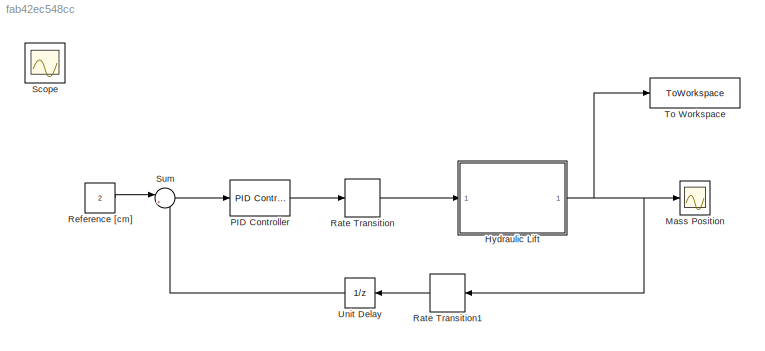
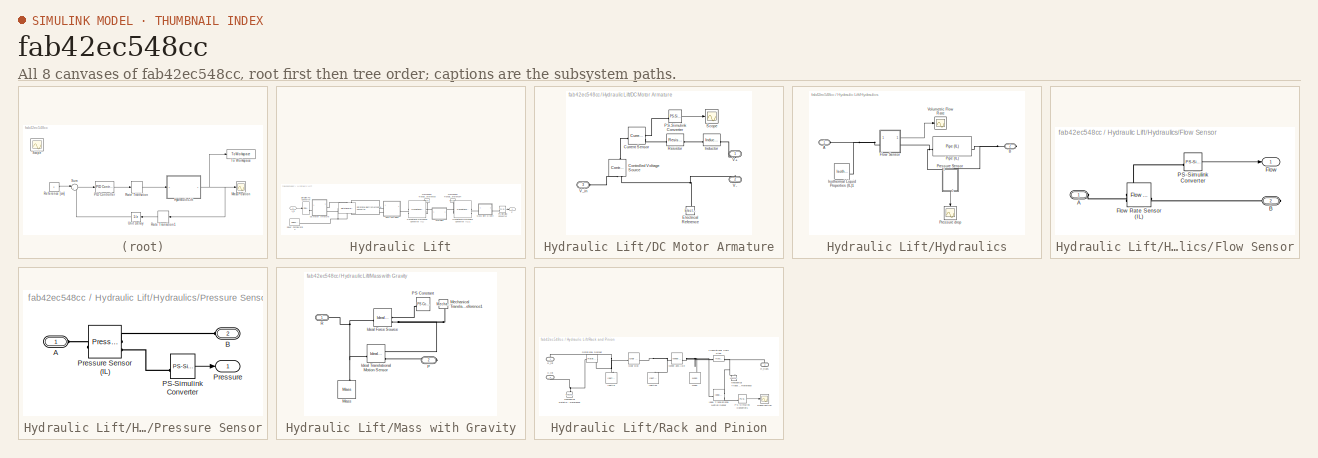
[diagram: thumbnail index - all 8 canvases of the model, root first then tree order]
MODEL slx_fab42ec548cc
KIND model
CONFIG AbsTol = 1e-3
CONFIG EnableMultiTasking = on
CONFIG FixedStep = auto
CONFIG MaxStep = auto
CONFIG MinStep = auto
CONFIG PreLoadFcn = m = 50;\ng = 9.81;
CONFIG RelTol = 1e-3
CONFIG SampleTimeConstraint = Unconstrained
CONFIG SolverName = ode23t
CONFIG StartTime = 0.0
CONFIG StopTime = 30
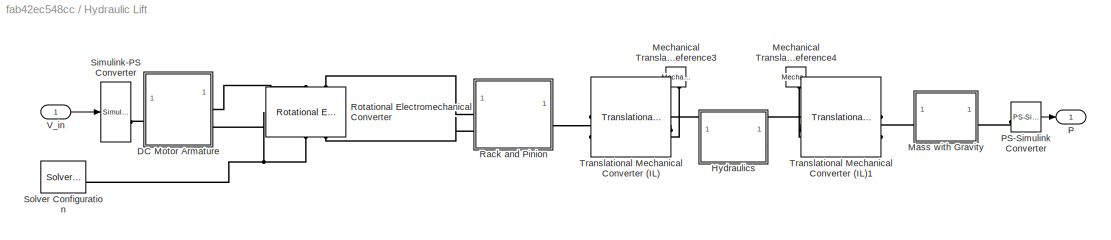
BLOCK [SubSystem] Hydraulic Lift
BLOCK [SubSystem] Hydraulic Lift/DC Motor Armature
BLOCK [Reference] Hydraulic Lift/DC Motor Armature/Controlled Voltage Source  REF=fl_lib/Electrical/Electrical Sources/Controlled Voltage
Source
  NameLocation = right
  SourceBlock = fl_lib/Electrical/Electrical Sources/Controlled Voltage\nSource
  SourceType = Controlled Voltage\nSource
BLOCK [Reference] Hydraulic Lift/DC Motor Armature/Current Sensor  REF=fl_lib/Electrical/Electrical Sensors/Current Sensor
  SourceBlock = fl_lib/Electrical/Electrical Sensors/Current Sensor
  SourceType = Current Sensor
BLOCK [Reference] Hydraulic Lift/DC Motor Armature/Electrical Reference  REF=fl_lib/Electrical/Electrical Elements/Electrical Reference
  NameLocation = right
  SourceBlock = fl_lib/Electrical/Electrical Elements/Electrical Reference
  SourceType = Electrical Reference
BLOCK [Reference] Hydraulic Lift/DC Motor Armature/Inductor  REF=fl_lib/Electrical/Electrical Elements/Inductor
  SourceBlock = fl_lib/Electrical/Electrical Elements/Inductor
  SourceType = Inductor
BLOCK [Reference] Hydraulic Lift/DC Motor Armature/PS-Simulink Converter  REF=nesl_utility/PS-Simulink
Converter
  SourceBlock = nesl_utility/PS-Simulink\nConverter
  SourceType = PS-Simulink\nConverter
BLOCK [Reference] Hydraulic Lift/DC Motor Armature/Resistor  REF=fl_lib/Electrical/Electrical Elements/Resistor
  SourceBlock = fl_lib/Electrical/Electrical Elements/Resistor
  SourceType = Resistor
BLOCK [Scope] Hydraulic Lift/DC Motor Armature/Scope
  Floating = off
  NumInputPorts = 1
  ScopeSpecificationString = Simulink.scopes.TimeScopeBlockCfg('CurrentConfiguration', extmgr.ConfigurationSet(extmgr.Configuration('Core','General UI',true,'FigureColor',[0.156862745098039 0.156862745098039 0.156862745098039]),extmgr.Configuration('Core','Source UI',true),extmgr.Configuration('Sources','WiredSimulink',true,'DataLoggingLimitDataPoints',true,'DataLoggingSaveFormat','StructureWithTime','DataLoggingDecimation','...<+2870ch>
BLOCK [PMIOPort] Hydraulic Lift/DC Motor Armature/V+
  NameLocation = right
  Side = Right
BLOCK [PMIOPort] Hydraulic Lift/DC Motor Armature/V-
  NameLocation = right
  Port = 2
  Side = Right
BLOCK [PMIOPort] Hydraulic Lift/DC Motor Armature/V_in
  NameLocation = top
  Port = 3
  Side = Left
BLOCK [SubSystem] Hydraulic Lift/Hydraulics
BLOCK [PMIOPort] Hydraulic Lift/Hydraulics/A
  Side = Left
BLOCK [PMIOPort] Hydraulic Lift/Hydraulics/B
  Port = 2
  Side = Right
BLOCK [SubSystem] Hydraulic Lift/Hydraulics/Flow Sensor
BLOCK [PMIOPort] Hydraulic Lift/Hydraulics/Flow Sensor/A
  Side = Left
BLOCK [PMIOPort] Hydraulic Lift/Hydraulics/Flow Sensor/B
  Port = 2
  Side = Right
BLOCK [Outport] Hydraulic Lift/Hydraulics/Flow Sensor/Flow
  VectorParamsAs1DForOutWhenUnconnected = off
BLOCK [Reference] Hydraulic Lift/Hydraulics/Flow Sensor/Flow Rate Sensor (IL)  REF=fl_lib/Isothermal Liquid/Sensors/Flow Rate Sensor
(IL)
  SourceBlock = fl_lib/Isothermal Liquid/Sensors/Flow Rate Sensor\n(IL)
  SourceType = Flow Rate Sensor\n(IL)
BLOCK [Reference] Hydraulic Lift/Hydraulics/Flow Sensor/PS-Simulink Converter  REF=nesl_utility/PS-Simulink
Converter
  SourceBlock = nesl_utility/PS-Simulink\nConverter
  SourceType = PS-Simulink\nConverter
BLOCK [Reference] Hydraulic Lift/Hydraulics/Isothermal Liquid Properties (IL)1  REF=fl_lib/Isothermal Liquid/Utilities/Isothermal Liquid
Properties (IL)
  SourceBlock = fl_lib/Isothermal Liquid/Utilities/Isothermal Liquid\nProperties (IL)
  SourceType = Isothermal Liquid\nProperties (IL)
BLOCK [Reference] Hydraulic Lift/Hydraulics/Pipe (IL)  REF=fl_lib/Isothermal Liquid/Elements/Pipe (IL)
  SourceBlock = fl_lib/Isothermal Liquid/Elements/Pipe (IL)
  SourceType = Pipe (IL)
BLOCK [SubSystem] Hydraulic Lift/Hydraulics/Pressure Sensor
  NameLocation = left
BLOCK [PMIOPort] Hydraulic Lift/Hydraulics/Pressure Sensor/A
  Side = Left
BLOCK [PMIOPort] Hydraulic Lift/Hydraulics/Pressure Sensor/B
  Port = 2
  Side = Left
BLOCK [Reference] Hydraulic Lift/Hydraulics/Pressure Sensor/PS-Simulink Converter  REF=nesl_utility/PS-Simulink
Converter
  SourceBlock = nesl_utility/PS-Simulink\nConverter
  SourceType = PS-Simulink\nConverter
BLOCK [Outport] Hydraulic Lift/Hydraulics/Pressure Sensor/Pressure
  VectorParamsAs1DForOutWhenUnconnected = off
BLOCK [Reference] Hydraulic Lift/Hydraulics/Pressure Sensor/Pressure Sensor (IL)  REF=fl_lib/Isothermal Liquid/Sensors/Pressure Sensor (IL)
  SourceBlock = fl_lib/Isothermal Liquid/Sensors/Pressure Sensor (IL)
  SourceType = Pressure Sensor (IL)
BLOCK [Scope] Hydraulic Lift/Hydraulics/Pressure drop
  Floating = off
  NameLocation = left
  NumInputPorts = 1
  ScopeSpecificationString = Simulink.scopes.TimeScopeBlockCfg('CurrentConfiguration', extmgr.ConfigurationSet(extmgr.Configuration('Core','General UI',true,'FigureColor',[0.156862745098039 0.156862745098039 0.156862745098039]),extmgr.Configuration('Core','Source UI',true),extmgr.Configuration('Sources','WiredSimulink',true,'DataLoggingVariableName','ScopeData1','DataLoggingSaveFormat','StructureWithTime','DataLoggingDecimati...<+2862ch>
BLOCK [Scope] Hydraulic Lift/Hydraulics/Volumetric Flow Rate
  Floating = off
  NameLocation = top
  NumInputPorts = 1
  ScopeSpecificationString = Simulink.scopes.TimeScopeBlockCfg('CurrentConfiguration', extmgr.ConfigurationSet(extmgr.Configuration('Core','General UI',true,'FigureColor',[0.156862745098039 0.156862745098039 0.156862745098039]),extmgr.Configuration('Core','Source UI',true),extmgr.Configuration('Sources','WiredSimulink',true,'DataLoggingSaveFormat','StructureWithTime','DataLoggingDecimation','1'),extmgr.Configuration('Visuals'...<+2805ch>
BLOCK [SubSystem] Hydraulic Lift/Mass with Gravity
BLOCK [Reference] Hydraulic Lift/Mass with Gravity/Ideal Force Source  REF=fl_lib/Mechanical/Mechanical Sources/Ideal Force Source
  SourceBlock = fl_lib/Mechanical/Mechanical Sources/Ideal Force Source
  SourceType = Ideal Force Source
BLOCK [Reference] Hydraulic Lift/Mass with Gravity/Ideal Translational Motion Sensor  REF=fl_lib/Mechanical/Mechanical Sensors/Ideal Translational
Motion Sensor
  SourceBlock = fl_lib/Mechanical/Mechanical Sensors/Ideal Translational\nMotion Sensor
  SourceType = Ideal Translational\nMotion Sensor
BLOCK [Reference] Hydraulic Lift/Mass with Gravity/Mass  REF=fl_lib/Mechanical/Translational
Elements/Mass
  NameLocation = right
  SourceBlock = fl_lib/Mechanical/Translational\nElements/Mass
  SourceType = Mass
BLOCK [Reference] Hydraulic Lift/Mass with Gravity/Mechanical Translational Reference1  REF=fl_lib/Mechanical/Translational
Elements/Mechanical
Translational
Reference
  NameLocation = left
  SourceBlock = fl_lib/Mechanical/Translational\nElements/Mechanical\nTranslational\nReference
  SourceType = Mechanical\nTranslational\nReference
BLOCK [PMIOPort] Hydraulic Lift/Mass with Gravity/P
  Port = 2
  Side = Right
BLOCK [Reference] Hydraulic Lift/Mass with Gravity/PS Constant  REF=fl_lib/Physical Signals/Sources/PS Constant
  SourceBlock = fl_lib/Physical Signals/Sources/PS Constant
  SourceType = PS Constant
BLOCK [PMIOPort] Hydraulic Lift/Mass with Gravity/R
  Side = Left
BLOCK [Reference] Hydraulic Lift/Mechanical Translational Reference3  REF=fl_lib/Mechanical/Translational
Elements/Mechanical
Translational
Reference
  NameLocation = left
  SourceBlock = fl_lib/Mechanical/Translational\nElements/Mechanical\nTranslational\nReference
  SourceType = Mechanical\nTranslational\nReference
BLOCK [Reference] Hydraulic Lift/Mechanical Translational Reference4  REF=fl_lib/Mechanical/Translational
Elements/Mechanical
Translational
Reference
  NameLocation = left
  SourceBlock = fl_lib/Mechanical/Translational\nElements/Mechanical\nTranslational\nReference
  SourceType = Mechanical\nTranslational\nReference
BLOCK [Outport] Hydraulic Lift/P
BLOCK [Reference] Hydraulic Lift/PS-Simulink Converter  REF=nesl_utility/PS-Simulink
Converter
  SourceBlock = nesl_utility/PS-Simulink\nConverter
  SourceType = PS-Simulink\nConverter
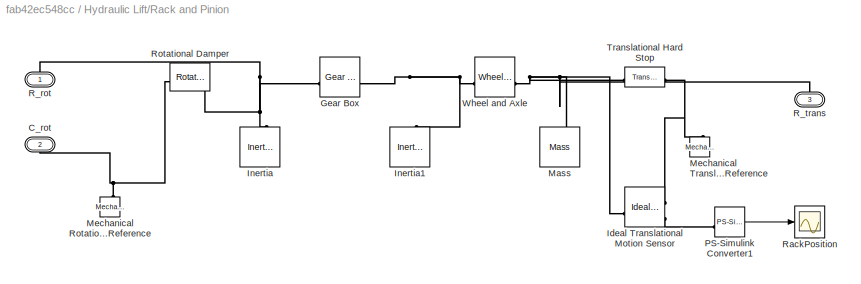
BLOCK [SubSystem] Hydraulic Lift/Rack and Pinion
BLOCK [PMIOPort] Hydraulic Lift/Rack and Pinion/C_rot
  NameLocation = right
  Port = 2
  Side = Left
BLOCK [Reference] Hydraulic Lift/Rack and Pinion/Gear Box  REF=fl_lib/Mechanical/Mechanisms/Gear Box
  SourceBlock = fl_lib/Mechanical/Mechanisms/Gear Box
  SourceType = Gear Box
BLOCK [Reference] Hydraulic Lift/Rack and Pinion/Ideal Translational Motion Sensor  REF=fl_lib/Mechanical/Mechanical Sensors/Ideal Translational
Motion Sensor
  SourceBlock = fl_lib/Mechanical/Mechanical Sensors/Ideal Translational\nMotion Sensor
  SourceType = Ideal Translational\nMotion Sensor
BLOCK [Reference] Hydraulic Lift/Rack and Pinion/Inertia  REF=fl_lib/Mechanical/Rotational Elements/Inertia
  NameLocation = right
  SourceBlock = fl_lib/Mechanical/Rotational Elements/Inertia
  SourceType = Inertia
BLOCK [Reference] Hydraulic Lift/Rack and Pinion/Inertia1  REF=fl_lib/Mechanical/Rotational Elements/Inertia
  NameLocation = right
  SourceBlock = fl_lib/Mechanical/Rotational Elements/Inertia
  SourceType = Inertia
BLOCK [Reference] Hydraulic Lift/Rack and Pinion/Mass  REF=fl_lib/Mechanical/Translational
Elements/Mass
  NameLocation = right
  SourceBlock = fl_lib/Mechanical/Translational\nElements/Mass
  SourceType = Mass
BLOCK [Reference] Hydraulic Lift/Rack and Pinion/Mechanical Rotational Reference  REF=fl_lib/Mechanical/Rotational Elements/Mechanical
Rotational Reference
  NameLocation = right
  SourceBlock = fl_lib/Mechanical/Rotational Elements/Mechanical\nRotational Reference
  SourceType = Mechanical\nRotational Reference
BLOCK [Reference] Hydraulic Lift/Rack and Pinion/Mechanical Translational Reference  REF=fl_lib/Mechanical/Translational
Elements/Mechanical
Translational
Reference
  NameLocation = right
  SourceBlock = fl_lib/Mechanical/Translational\nElements/Mechanical\nTranslational\nReference
  SourceType = Mechanical\nTranslational\nReference
BLOCK [Reference] Hydraulic Lift/Rack and Pinion/PS-Simulink Converter1  REF=nesl_utility/PS-Simulink
Converter
  SourceBlock = nesl_utility/PS-Simulink\nConverter
  SourceType = PS-Simulink\nConverter
BLOCK [PMIOPort] Hydraulic Lift/Rack and Pinion/R_rot
  NameLocation = right
  Side = Left
BLOCK [PMIOPort] Hydraulic Lift/Rack and Pinion/R_trans
  NameLocation = right
  Port = 3
  Side = Right
BLOCK [Scope] Hydraulic Lift/Rack and Pinion/RackPosition
  Floating = off
  NumInputPorts = 1
  ScopeSpecificationString = Simulink.scopes.TimeScopeBlockCfg('CurrentConfiguration', extmgr.ConfigurationSet(extmgr.Configuration('Core','General UI',true,'FigureColor',[0.156862745098039 0.156862745098039 0.156862745098039]),extmgr.Configuration('Core','Source UI',true),extmgr.Configuration('Sources','WiredSimulink',true,'DataLoggingLimitDataPoints',true,'DataLoggingVariableName','ScopeData1','DataLoggingSaveFormat','Struc...<+2896ch>
BLOCK [Reference] Hydraulic Lift/Rack and Pinion/Rotational Damper  REF=fl_lib/Mechanical/Rotational Elements/Rotational Damper
  SourceBlock = fl_lib/Mechanical/Rotational Elements/Rotational Damper
  SourceType = Rotational Damper
BLOCK [Reference] Hydraulic Lift/Rack and Pinion/Translational Hard Stop  REF=fl_lib/Mechanical/Translational
Elements/Translational Hard
Stop
  SourceBlock = fl_lib/Mechanical/Translational\nElements/Translational Hard\nStop
  SourceType = Translational Hard\nStop
BLOCK [Reference] Hydraulic Lift/Rack and Pinion/Wheel and Axle  REF=fl_lib/Mechanical/Mechanisms/Wheel and Axle
  SourceBlock = fl_lib/Mechanical/Mechanisms/Wheel and Axle
  SourceType = Wheel and Axle
BLOCK [Reference] Hydraulic Lift/Rotational Electromechanical Converter  REF=fl_lib/Electrical/Electrical Elements/Rotational
Electromechanical
Converter
  NameLocation = right
  SourceBlock = fl_lib/Electrical/Electrical Elements/Rotational\nElectromechanical\nConverter
  SourceType = Rotational\nElectromechanical\nConverter
BLOCK [Reference] Hydraulic Lift/Simulink-PS Converter  REF=nesl_utility/Simulink-PS
Converter
  SourceBlock = nesl_utility/Simulink-PS\nConverter
  SourceType = Simulink-PS\nConverter
BLOCK [Reference] Hydraulic Lift/Solver Configuration  REF=nesl_utility/Solver
Configuration
  SourceBlock = nesl_utility/Solver\nConfiguration
  SourceType = Solver\nConfiguration
BLOCK [Reference] Hydraulic Lift/Translational Mechanical Converter (IL)  REF=fl_lib/Isothermal Liquid/Elements/Translational
Mechanical Converter
(IL)
  SourceBlock = fl_lib/Isothermal Liquid/Elements/Translational\nMechanical Converter\n(IL)
  SourceType = Translational\nMechanical Converter\n(IL)
BLOCK [Reference] Hydraulic Lift/Translational Mechanical Converter (IL)1  REF=fl_lib/Isothermal Liquid/Elements/Translational
Mechanical Converter
(IL)
  SourceBlock = fl_lib/Isothermal Liquid/Elements/Translational\nMechanical Converter\n(IL)
  SourceType = Translational\nMechanical Converter\n(IL)
BLOCK [Inport] Hydraulic Lift/V_in
BLOCK [Scope] Mass Position
  Floating = off
  NumInputPorts = 1
  ScopeSpecificationString = Simulink.scopes.TimeScopeBlockCfg('CurrentConfiguration', extmgr.ConfigurationSet(extmgr.Configuration('Core','General UI',true,'FigureColor',[0.156862745098039 0.156862745098039 0.156862745098039]),extmgr.Configuration('Core','Source UI',true),extmgr.Configuration('Sources','WiredSimulink',true,'DataLoggingVariableName','ScopeData1','DataLoggingSaveFormat','StructureWithTime','DataLoggingDecimati...<+2951ch>
BLOCK [Reference] PID Controller  REF=slpidlib/PID Controller
  SourceBlock = slpidlib/PID Controller
  SourceType = PID 1dof
BLOCK [RateTransition] Rate Transition
BLOCK [RateTransition] Rate Transition1
BLOCK [Constant] Reference [cm]
  Value = 2
BLOCK [Scope] Scope
  Floating = off
  IOType = viewer
  NumInputPorts = 1
  ScopeSpecificationString = Simulink.scopes.TimeScopeBlockCfg('CurrentConfiguration', extmgr.ConfigurationSet(extmgr.Configuration('Core','General UI',true,'FigureColor',[0.156862745098039 0.156862745098039 0.156862745098039]),extmgr.Configuration('Core','Source UI',true),extmgr.Configuration('Sources','WiredSimulink',true,'DataLoggingLimitDataPoints',true,'DataLoggingMaxPoints','7500','DataLoggingSaveFormat','Array','DataLo...<+2869ch>
BLOCK [Sum] Sum
  Inputs = |+-
BLOCK [ToWorkspace] To Workspace
  FixptAsFi = on
  MaxDataPoints = inf
  SampleTime = -1
  SaveFormat = Timeseries
  VariableName = simout
BLOCK [UnitDelay] Unit Delay
  HasFrameUpgradeWarning = on
  SampleTime = 0.1
LINE Hydraulic Lift/DC Motor Armature/PS-Simulink Converter:1 -> Hydraulic Lift/DC Motor Armature/Scope:1
LINE Hydraulic Lift/Hydraulics/Flow Sensor/PS-Simulink Converter:1 -> Hydraulic Lift/Hydraulics/Flow Sensor/Flow:1
LINE Hydraulic Lift/Hydraulics/Flow Sensor:1 -> Hydraulic Lift/Hydraulics/Volumetric Flow Rate:1
LINE Hydraulic Lift/Hydraulics/Pressure Sensor/PS-Simulink Converter:1 -> Hydraulic Lift/Hydraulics/Pressure Sensor/Pressure:1
LINE Hydraulic Lift/Hydraulics/Pressure Sensor:1 -> Hydraulic Lift/Hydraulics/Pressure drop:1
LINE Hydraulic Lift/PS-Simulink Converter:1 -> Hydraulic Lift/P:1
LINE Hydraulic Lift/Rack and Pinion/PS-Simulink Converter1:1 -> Hydraulic Lift/Rack and Pinion/RackPosition:1
LINE Hydraulic Lift/V_in:1 -> Hydraulic Lift/Simulink-PS Converter:1
NET Hydraulic Lift:1 -> Mass Position:1, Rate Transition1:1, To Workspace:1
LINE PID Controller:1 -> Rate Transition:1
LINE Rate Transition1:1 -> Unit Delay:1
LINE Rate Transition:1 -> Hydraulic Lift:1
LINE Reference [cm]:1 -> Sum:1
LINE Sum:1 -> PID Controller:1
LINE Unit Delay:1 -> Sum:2
PLINE Hydraulic Lift/DC Motor Armature/Controlled Voltage Source:LConn1 -- Hydraulic Lift/DC Motor Armature/Current Sensor:LConn1
PLINE Hydraulic Lift/DC Motor Armature/Controlled Voltage Source:RConn1 -- Hydraulic Lift/DC Motor Armature/V_in:RConn1
PNET net1: Hydraulic Lift/DC Motor Armature/Controlled Voltage Source:RConn2 -- Hydraulic Lift/DC Motor Armature/Electrical Reference:LConn1 -- Hydraulic Lift/DC Motor Armature/V-:RConn1
PLINE Hydraulic Lift/DC Motor Armature/Current Sensor:RConn1 -- Hydraulic Lift/DC Motor Armature/PS-Simulink Converter:LConn1
PLINE Hydraulic Lift/DC Motor Armature/Current Sensor:RConn2 -- Hydraulic Lift/DC Motor Armature/Resistor:LConn1
PLINE Hydraulic Lift/DC Motor Armature/Inductor:LConn1 -- Hydraulic Lift/DC Motor Armature/Resistor:RConn1
PLINE Hydraulic Lift/DC Motor Armature/Inductor:RConn1 -- Hydraulic Lift/DC Motor Armature/V+:RConn1
PLINE Hydraulic Lift/DC Motor Armature:LConn1 -- Hydraulic Lift/Simulink-PS Converter:RConn1
PLINE Hydraulic Lift/DC Motor Armature:RConn1 -- Hydraulic Lift/Rotational Electromechanical Converter:LConn1
PNET net2: Hydraulic Lift/DC Motor Armature:RConn2 -- Hydraulic Lift/Rotational Electromechanical Converter:RConn1 -- Hydraulic Lift/Solver Configuration:RConn1
PNET net3: Hydraulic Lift/Hydraulics/A:RConn1 -- Hydraulic Lift/Hydraulics/Flow Sensor:LConn1 -- Hydraulic Lift/Hydraulics/Isothermal Liquid Properties (IL)1:RConn1
PNET net4: Hydraulic Lift/Hydraulics/B:RConn1 -- Hydraulic Lift/Hydraulics/Pipe (IL):RConn1 -- Hydraulic Lift/Hydraulics/Pressure Sensor:LConn2
PLINE Hydraulic Lift/Hydraulics/Flow Sensor/A:RConn1 -- Hydraulic Lift/Hydraulics/Flow Sensor/Flow Rate Sensor (IL):LConn1
PLINE Hydraulic Lift/Hydraulics/Flow Sensor/B:RConn1 -- Hydraulic Lift/Hydraulics/Flow Sensor/Flow Rate Sensor (IL):RConn1
PLINE Hydraulic Lift/Hydraulics/Flow Sensor/Flow Rate Sensor (IL):RConn2 -- Hydraulic Lift/Hydraulics/Flow Sensor/PS-Simulink Converter:LConn1
PNET net5: Hydraulic Lift/Hydraulics/Flow Sensor:RConn1 -- Hydraulic Lift/Hydraulics/Pipe (IL):LConn1 -- Hydraulic Lift/Hydraulics/Pressure Sensor:LConn1
PLINE Hydraulic Lift/Hydraulics/Pressure Sensor/A:RConn1 -- Hydraulic Lift/Hydraulics/Pressure Sensor/Pressure Sensor (IL):LConn1
PLINE Hydraulic Lift/Hydraulics/Pressure Sensor/B:RConn1 -- Hydraulic Lift/Hydraulics/Pressure Sensor/Pressure Sensor (IL):RConn1
PLINE Hydraulic Lift/Hydraulics/Pressure Sensor/PS-Simulink Converter:LConn1 -- Hydraulic Lift/Hydraulics/Pressure Sensor/Pressure Sensor (IL):RConn2
PLINE Hydraulic Lift/Hydraulics:LConn1 -- Hydraulic Lift/Translational Mechanical Converter (IL):LConn1
PLINE Hydraulic Lift/Hydraulics:RConn1 -- Hydraulic Lift/Translational Mechanical Converter (IL)1:LConn1
PNET net6: Hydraulic Lift/Mass with Gravity/Ideal Force Source:LConn1 -- Hydraulic Lift/Mass with Gravity/Ideal Translational Motion Sensor:LConn1 -- Hydraulic Lift/Mass with Gravity/Mass:LConn1 -- Hydraulic Lift/Mass with Gravity/R:RConn1
PLINE Hydraulic Lift/Mass with Gravity/Ideal Force Source:RConn1 -- Hydraulic Lift/Mass with Gravity/PS Constant:RConn1
PNET net7: Hydraulic Lift/Mass with Gravity/Ideal Force Source:RConn2 -- Hydraulic Lift/Mass with Gravity/Ideal Translational Motion Sensor:RConn1 -- Hydraulic Lift/Mass with Gravity/Mechanical Translational Reference1:LConn1
PLINE Hydraulic Lift/Mass with Gravity/Ideal Translational Motion Sensor:RConn3 -- Hydraulic Lift/Mass with Gravity/P:RConn1
PLINE Hydraulic Lift/Mass with Gravity:LConn1 -- Hydraulic Lift/Translational Mechanical Converter (IL)1:RConn1
PLINE Hydraulic Lift/Mass with Gravity:RConn1 -- Hydraulic Lift/PS-Simulink Converter:LConn1
PLINE Hydraulic Lift/Mechanical Translational Reference3:LConn1 -- Hydraulic Lift/Translational Mechanical Converter (IL):LConn2
PLINE Hydraulic Lift/Mechanical Translational Reference4:LConn1 -- Hydraulic Lift/Translational Mechanical Converter (IL)1:LConn2
PNET net8: Hydraulic Lift/Rack and Pinion/C_rot:RConn1 -- Hydraulic Lift/Rack and Pinion/Mechanical Rotational Reference:LConn1 -- Hydraulic Lift/Rack and Pinion/Rotational Damper:RConn1
PNET net9: Hydraulic Lift/Rack and Pinion/Gear Box:LConn1 -- Hydraulic Lift/Rack and Pinion/Inertia:LConn1 -- Hydraulic Lift/Rack and Pinion/R_rot:RConn1 -- Hydraulic Lift/Rack and Pinion/Rotational Damper:LConn1
PNET net10: Hydraulic Lift/Rack and Pinion/Gear Box:RConn1 -- Hydraulic Lift/Rack and Pinion/Inertia1:LConn1 -- Hydraulic Lift/Rack and Pinion/Wheel and Axle:LConn1
PNET net11: Hydraulic Lift/Rack and Pinion/Ideal Translational Motion Sensor:LConn1 -- Hydraulic Lift/Rack and Pinion/Mass:LConn1 -- Hydraulic Lift/Rack and Pinion/R_trans:RConn1 -- Hydraulic Lift/Rack and Pinion/Translational Hard Stop:LConn1 -- Hydraulic Lift/Rack and Pinion/Wheel and Axle:RConn1
PNET net12: Hydraulic Lift/Rack and Pinion/Ideal Translational Motion Sensor:RConn1 -- Hydraulic Lift/Rack and Pinion/Mechanical Translational Reference:LConn1 -- Hydraulic Lift/Rack and Pinion/Translational Hard Stop:RConn1
PLINE Hydraulic Lift/Rack and Pinion/Ideal Translational Motion Sensor:RConn3 -- Hydraulic Lift/Rack and Pinion/PS-Simulink Converter1:LConn1
PLINE Hydraulic Lift/Rack and Pinion:LConn1 -- Hydraulic Lift/Rotational Electromechanical Converter:LConn2
PLINE Hydraulic Lift/Rack and Pinion:LConn2 -- Hydraulic Lift/Rotational Electromechanical Converter:RConn2
PLINE Hydraulic Lift/Rack and Pinion:RConn1 -- Hydraulic Lift/Translational Mechanical Converter (IL):RConn1
note: NET lines group one-source signal fan-out (src -> all destinations, sorted); 1:1 wires keep LINE; PNET lines group multi-terminal physical nets as a canonical sorted terminal list (undirected conserving connections); 2-terminal nets keep the pairwise PLINE form
